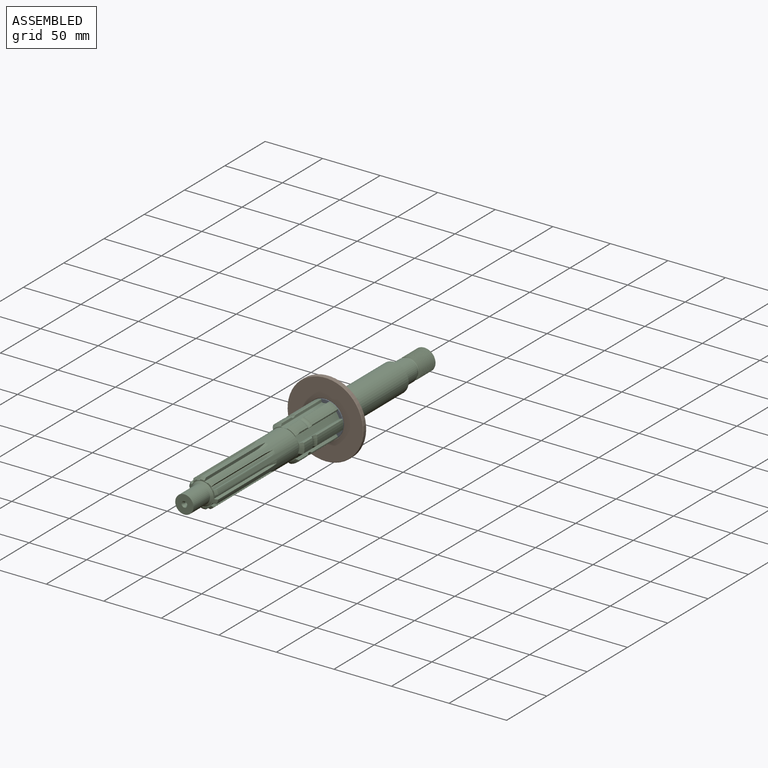
[diagram: assembled view]
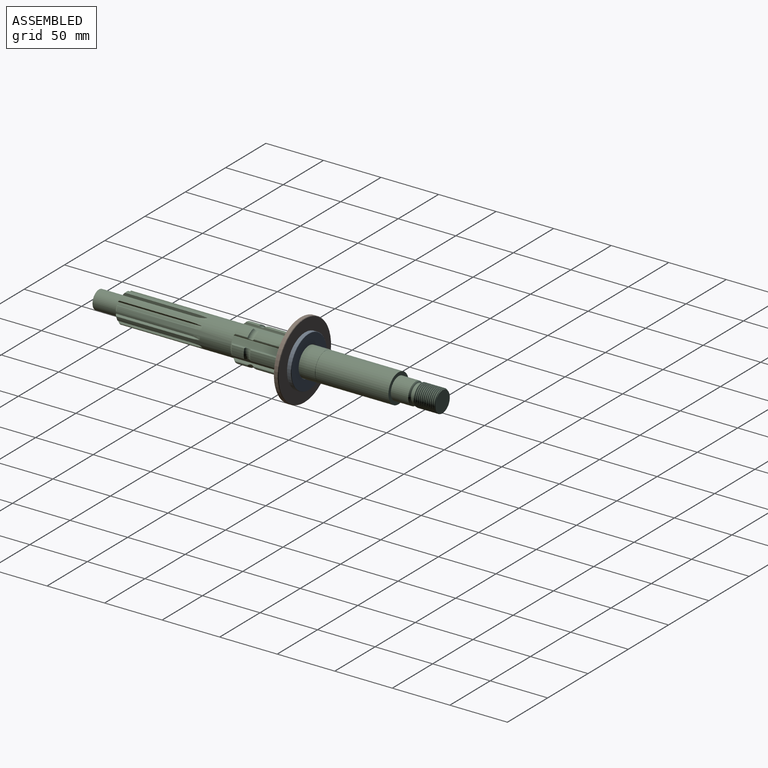
[diagram: assembled view, second angle]
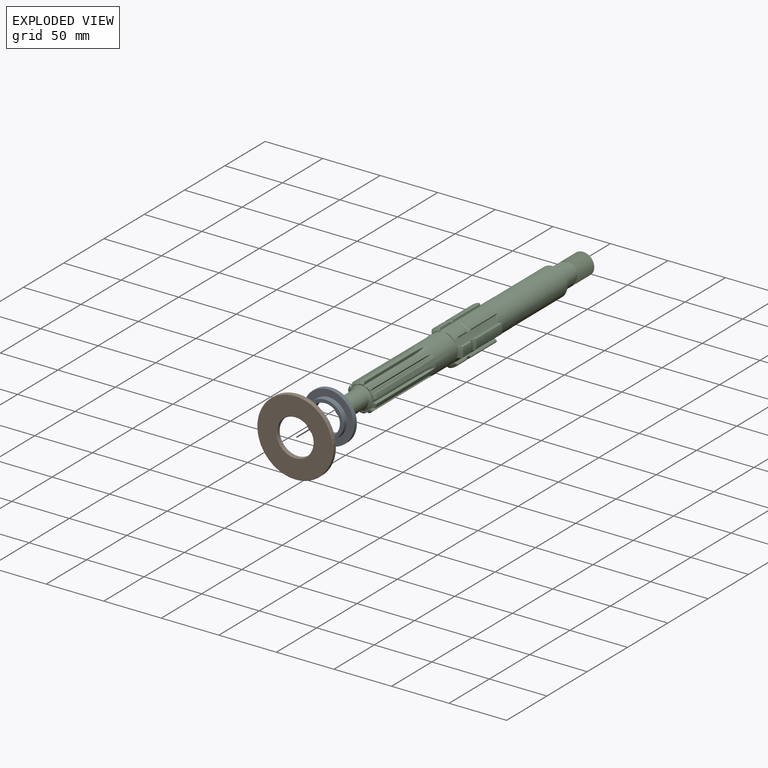
[diagram: exploded view]
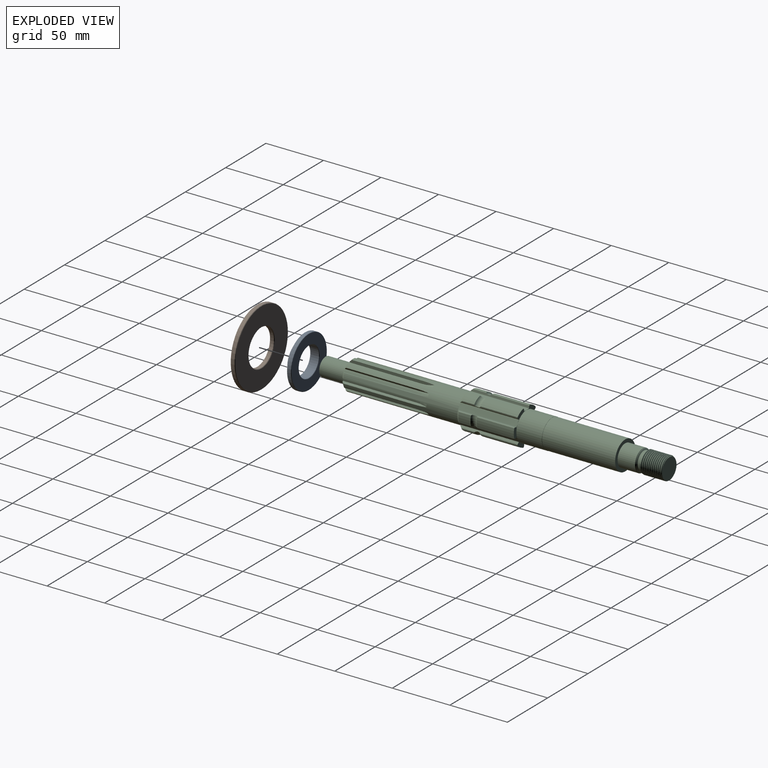
[diagram: exploded view, second angle]
ASSEMBLY  parts=3 mates=2
PART A: 12 faces, bbox 44.5x8x44.5 mm
  f0: cylinder r=22.23mm len=44.45mm, axis (0,1,0), area 452.7mm2, adj f7,f11
  f1: plane 31.24x31.24mm, normal (0,-1,0), area 239.4mm2, adj f8,f9
  f2: cylinder r=12.7mm len=25.4mm, axis (0,1,0), area 597.8mm2, adj f9,f10
  f3: plane 43.94x43.94mm, normal (0,1,0), area 989.3mm2, adj f10,f11
  f4: cylinder r=15.88mm len=31.75mm, axis (0,-1,0), area 373.2mm2, adj f6,f8
  f5: plane 43.94x43.94mm, normal (0,-1,0), area 699.3mm2, adj f6,f7
  f6: torus R=16.13mm, axis (0,-1,0), area 40mm2, adj f4,f5
  f7: cone r=21.97mm half-angle=45deg, axis (0,1,0), area 49.9mm2, adj f0,f5
  f8: cone r=15.62mm half-angle=45deg, axis (0,1,0), area 35.5mm2, adj f1,f4
  f9: cone r=12.7mm half-angle=45deg, axis (0,-1,0), area 29mm2, adj f1,f2
  f10: cone r=12.95mm half-angle=45deg, axis (0,1,0), area 29mm2, adj f2,f3
  f11: cone r=22.23mm half-angle=45deg, axis (0,-1,0), area 49.9mm2, adj f0,f3
PART B: 8 faces, bbox 66x4x66 mm
  f0: cylinder r=33mm len=66mm, axis (0,1,0), area 671.4mm2, adj f4,f6
  f1: cylinder r=15.88mm len=31.75mm, axis (0,1,0), area 323mm2, adj f5,f7
  f2: plane 65.24x65.24mm, normal (0,-1,0), area 2512.5mm2, adj f6,f7
  f3: plane 65.24x65.24mm, normal (0,1,0), area 2512.5mm2, adj f4,f5
  f4: cone r=33mm half-angle=45deg, axis (0,-1,0), area 111.1mm2, adj f0,f3
  f5: cone r=16.26mm half-angle=45deg, axis (0,1,0), area 54.4mm2, adj f1,f3
  f6: cone r=32.62mm half-angle=45deg, axis (0,1,0), area 111.1mm2, adj f0,f2
  f7: cone r=15.88mm half-angle=45deg, axis (0,-1,0), area 54.4mm2, adj f1,f2
PART C: 174 faces, bbox 38.3x299.5x37.4 mm
  f0: plane 11.25x8.99mm, normal (0,1,0), area 27.9mm2, adj f7,f36,f38,f42,f43,f142,f143,f145
  f1: plane 12.7x4.88mm, normal (0,1,0), area 27.8mm2, adj f6,f10,f13,f43,f44,f46,f47,f158
  f2: plane 11.25x8.99mm, normal (0,1,0), area 27.8mm2, adj f12,f15,f19,f47,f48,f50,f51,f158
  f3: plane 11.25x8.99mm, normal (0,1,0), area 27.8mm2, adj f18,f21,f26,f51,f52,f54,f55,f158
  f4: plane 12.7x4.88mm, normal (0,1,0), area 27.8mm2, adj f24,f27,f32,f55,f56,f58,f59,f158
  f5: cylinder r=15.88mm len=10.59mm, axis (0,-1,0), area 88.6mm2, adj f9,f14,f149,f157
  f6: cylinder r=15.88mm len=32.18mm, axis (0,-1,0), area 269.4mm2, adj f1,f10,f13,f157
  f7: plane 32.68x0.93mm, normal (1,0,-0.02), area 29.7mm2, adj f0,f36,f42,f153
  f8: plane 11.75x0.93mm, normal (1,0,-0.02), area 10.2mm2, adj f35,f42,f151,f153
  f9: plane 11.75x0.82mm, normal (0.48,0,0.88), area 10.2mm2, adj f5,f44,f149,f157
  f10: plane 32.68x0.81mm, normal (0.48,0,0.88), area 29.7mm2, adj f1,f6,f44,f157
  f11: cylinder r=15.88mm len=10.59mm, axis (0,-1,0), area 88.6mm2, adj f16,f20,f148,f156
  f12: cylinder r=15.88mm len=32.18mm, axis (0,-1,0), area 269.4mm2, adj f2,f15,f19,f156
  f13: plane 32.68x0.81mm, normal (0.48,0,-0.88), area 29.7mm2, adj f1,f6,f46,f157
  f14: plane 11.75x0.82mm, normal (0.48,0,-0.88), area 10.2mm2, adj f5,f46,f149,f157
  f15: plane 32.68x0.93mm, normal (1,0,0.02), area 29.7mm2, adj f2,f12,f48,f156
  f16: plane 11.75x0.93mm, normal (1,0,0.02), area 10.2mm2, adj f11,f48,f148,f156
  f17: cylinder r=15.88mm len=10.59mm, axis (0,-1,0), area 88.6mm2, adj f22,f25,f146,f155
  f18: cylinder r=15.88mm len=32.18mm, axis (0,-1,0), area 269.4mm2, adj f3,f21,f26,f155
  f19: plane 32.68x0.79mm, normal (-0.52,0,-0.85), area 29.7mm2, adj f2,f12,f50,f156
  f20: plane 11.75x0.8mm, normal (-0.52,0,-0.85), area 10.2mm2, adj f11,f50,f148,f156
  f21: plane 32.68x0.79mm, normal (0.52,0,-0.85), area 29.7mm2, adj f3,f18,f52,f155
  f22: plane 11.75x0.8mm, normal (0.52,0,-0.85), area 10.2mm2, adj f17,f52,f146,f155
  f23: cylinder r=15.88mm len=10.59mm, axis (0,-1,0), area 88.6mm2, adj f28,f31,f147,f154
  f24: cylinder r=15.88mm len=32.18mm, axis (0,-1,0), area 269.4mm2, adj f4,f27,f32,f154
  f25: plane 11.75x0.93mm, normal (-1,0,0.02), area 10.2mm2, adj f17,f54,f146,f155
  f26: plane 32.68x0.93mm, normal (-1,0,0.02), area 29.7mm2, adj f3,f18,f54,f155
  f27: plane 32.68x0.81mm, normal (-0.48,0,-0.88), area 29.7mm2, adj f4,f24,f56,f154
  f28: plane 11.75x0.82mm, normal (-0.48,0,-0.88), area 10.2mm2, adj f23,f56,f147,f154
  f29: cylinder r=15.88mm len=10.59mm, axis (0,-1,0), area 88.6mm2, adj f33,f39,f150,f152
  f30: cylinder r=15.88mm len=32.18mm, axis (0,-1,0), area 269.4mm2, adj f34,f40,f140,f152
  f31: plane 11.75x0.82mm, normal (-0.48,0,0.88), area 10.2mm2, adj f23,f58,f147,f154
  f32: plane 32.68x0.81mm, normal (-0.48,0,0.88), area 29.7mm2, adj f4,f24,f58,f154
  f33: plane 11.75x0.93mm, normal (-1,0,-0.02), area 10.2mm2, adj f29,f60,f150,f152
  f34: plane 32.68x0.93mm, normal (-1,0,-0.02), area 29.7mm2, adj f30,f60,f140,f152
  f35: cylinder r=15.88mm len=10.59mm, axis (0,-1,0), area 88.6mm2, adj f8,f37,f151,f153
  f36: cylinder r=15.88mm len=32.18mm, axis (0,-1,0), area 269.4mm2, adj f0,f7,f38,f153
  f37: plane 11.75x0.8mm, normal (-0.52,0,0.85), area 10.2mm2, adj f35,f143,f151,f153
  f38: plane 32.68x0.79mm, normal (-0.52,0,0.85), area 29.7mm2, adj f0,f36,f143,f153
  f39: plane 11.75x0.8mm, normal (0.52,0,0.85), area 10.2mm2, adj f29,f141,f150,f152
  f40: plane 32.68x0.79mm, normal (0.52,0,0.85), area 29.7mm2, adj f30,f140,f141,f152
  f41: plane 12.7x2.34mm, normal (0,-1,0), area 5.6mm2, adj f43,f44,f46,f47,f62,f149
  f42: plane 50.8x1.64mm, normal (0.68,0,-0.74), area 108mm2, adj f0,f7,f8,f43,f61,f151,f153
  f43: plane 50.8x4.88mm, normal (0.87,0,0.5), area 286.1mm2, adj f0,f1,f41,f42,f44,f61
  f44: plane 50.8x2.12mm, normal (-0.3,0,0.95), area 108mm2, adj f1,f9,f10,f41,f43,f149,f157
  f45: plane 11x6.67mm, normal (0,-1,0), area 5.6mm2, adj f47,f48,f50,f51,f62,f148
  f46: plane 50.8x2.12mm, normal (-0.3,0,-0.95), area 108mm2, adj f1,f13,f14,f41,f47,f149,f157
  f47: plane 50.8x4.88mm, normal (0.87,0,-0.5), area 286.1mm2, adj f1,f2,f41,f45,f46,f48
  f48: plane 50.8x1.64mm, normal (0.68,0,0.74), area 108mm2, adj f2,f15,f16,f45,f47,f148,f156
  f49: plane 11x6.67mm, normal (0,-1,0), area 5.6mm2, adj f51,f52,f54,f55,f62,f146
  f50: plane 50.8x2.17mm, normal (-0.98,0,-0.22), area 108mm2, adj f2,f19,f20,f45,f51,f148,f156
  f51: plane 50.8x5.63mm, normal (0,0,-1), area 286.1mm2, adj f2,f3,f45,f49,f50,f52
  f52: plane 50.8x2.17mm, normal (0.98,0,-0.22), area 108mm2, adj f3,f21,f22,f49,f51,f146,f155
  f53: plane 12.7x2.34mm, normal (0,-1,0), area 5.6mm2, adj f55,f56,f58,f59,f62,f147
  f54: plane 50.8x1.64mm, normal (-0.68,0,0.74), area 108mm2, adj f3,f25,f26,f49,f55,f146,f155
  f55: plane 50.8x4.88mm, normal (-0.87,0,-0.5), area 286.1mm2, adj f3,f4,f49,f53,f54,f56
  f56: plane 50.8x2.12mm, normal (0.3,0,-0.95), area 108mm2, adj f4,f27,f28,f53,f55,f147,f154
  f57: plane 11x6.67mm, normal (0,-1,0), area 5.7mm2, adj f59,f60,f62,f142,f144,f150
  f58: plane 50.8x2.12mm, normal (0.3,0,0.95), area 108mm2, adj f4,f31,f32,f53,f59,f147,f154
  f59: plane 50.8x4.88mm, normal (-0.87,0,0.5), area 286.1mm2, adj f4,f53,f57,f58,f60,f140
  f60: plane 50.8x1.64mm, normal (-0.68,0,-0.74), area 108mm2, adj f33,f34,f57,f59,f140,f150,f152
  f61: plane 11x6.67mm, normal (0,-1,0), area 5.7mm2, adj f42,f43,f62,f142,f145,f151
  f62: cylinder r=12.7mm len=99.82mm, axis (0,-1,0), area 5100.6mm2, adj f41,f45,f49,f53,f57,f61,f63,f64
  f63: cone r=12.7mm half-angle=45deg, axis (0,1,0), area 10mm2, adj f62,f75,f130,f135
  f64: cone r=12.7mm half-angle=45deg, axis (0,1,0), area 10mm2, adj f62,f75,f117,f136
  f65: cone r=12.7mm half-angle=45deg, axis (0,1,0), area 10mm2, adj f62,f75,f100,f129
  f66: cone r=12.7mm half-angle=45deg, axis (0,1,0), area 10mm2, adj f62,f75,f118,f123
  f67: cone r=12.7mm half-angle=45deg, axis (0,1,0), area 10mm2, adj f62,f75,f87,f124
  f68: cone r=12.7mm half-angle=45deg, axis (0,1,0), area 10mm2, adj f62,f75,f106,f111
  f69: cone r=12.7mm half-angle=45deg, axis (0,1,0), area 10mm2, adj f62,f75,f93,f112
  f70: cone r=12.7mm half-angle=45deg, axis (0,1,0), area 10mm2, adj f62,f75,f82,f105
  f71: cone r=12.7mm half-angle=45deg, axis (0,1,0), area 10mm2, adj f62,f75,f94,f99
  f72: cone r=12.7mm half-angle=45deg, axis (0,1,0), area 10mm2, adj f62,f75,f81,f88
  f73: cylinder r=7.94mm len=20.45mm, axis (0,-1,0), area 1019.7mm2, adj f74,f76
  f74: plane 15.88x15.88mm, normal (0,-1,0), area 178.2mm2, adj f73,f139
  f75: plane 21.84x21.65mm, normal (0,-1,0), area 61.1mm2, adj f63,f64,f65,f66,f67,f68,f69,f70
  f76: cone r=7.94mm half-angle=45deg, axis (0,1,0), area 139.4mm2, adj f73,f75
  f77: torus R=35.61mm, axis (-0.59,0,0.81), area 28mm2, adj f62,f78,f79,f80
  f78: cone r=23.07mm half-angle=72deg, axis (-0.59,0,0.81), area 17.9mm2, adj f62,f77,f81
  f79: cone r=25.4mm half-angle=72deg, axis (0.59,0,-0.81), area 17.9mm2, adj f62,f77,f82
  f80: cylinder r=10.29mm len=63.5mm, axis (0,-1,0), area 158.9mm2, adj f75,f77,f81,f82
  f81: plane 63.52x2.35mm, normal (-0.31,0,0.95), area 153.9mm2, adj f62,f72,f75,f78,f80
  f82: plane 63.52x2mm, normal (0.81,0,-0.59), area 153.9mm2, adj f62,f70,f75,f79,f80
  f83: torus R=35.61mm, axis (0,0,1), area 28mm2, adj f62,f84,f85,f86
  f84: cone r=23.07mm half-angle=72deg, axis (0,0,1), area 17.9mm2, adj f62,f83,f87
  f85: cone r=25.4mm half-angle=72deg, axis (0,0,-1), area 17.9mm2, adj f62,f83,f88
  f86: cylinder r=10.29mm len=63.5mm, axis (0,-1,0), area 158.9mm2, adj f75,f83,f87,f88
  f87: plane 63.52x2.35mm, normal (0.31,0,0.95), area 153.9mm2, adj f62,f67,f75,f84,f86
  f88: plane 63.52x2.35mm, normal (0.31,0,-0.95), area 153.9mm2, adj f62,f72,f75,f85,f86
  f89: torus R=35.61mm, axis (-0.59,0,-0.81), area 28mm2, adj f62,f90,f91,f92
  f90: cone r=23.07mm half-angle=72deg, axis (-0.59,0,-0.81), area 17.9mm2, adj f62,f89,f93
  f91: cone r=25.4mm half-angle=72deg, axis (0.59,0,0.81), area 17.9mm2, adj f62,f89,f94
  f92: cylinder r=10.29mm len=63.5mm, axis (0,-1,0), area 158.9mm2, adj f75,f89,f93,f94
  f93: plane 63.52x2mm, normal (-0.81,0,-0.59), area 153.9mm2, adj f62,f69,f75,f90,f92
  f94: plane 63.52x2.35mm, normal (0.31,0,0.95), area 153.9mm2, adj f62,f71,f75,f91,f92
  f95: torus R=35.61mm, axis (0,0,-1), area 28mm2, adj f62,f96,f97,f98
  f96: cone r=23.07mm half-angle=72deg, axis (0,0,-1), area 17.9mm2, adj f62,f95,f99
  f97: cone r=25.4mm half-angle=72deg, axis (0,0,1), area 17.9mm2, adj f62,f95,f100
  f98: cylinder r=10.29mm len=63.5mm, axis (0,-1,0), area 158.9mm2, adj f75,f95,f99,f100
  f99: plane 63.52x2.35mm, normal (-0.31,0,-0.95), area 153.9mm2, adj f62,f71,f75,f96,f98
  f100: plane 63.52x2.35mm, normal (-0.31,0,0.95), area 153.9mm2, adj f62,f65,f75,f97,f98
  f101: torus R=35.61mm, axis (-0.95,0,0.31), area 28mm2, adj f62,f102,f103,f104
  f102: cone r=23.07mm half-angle=72deg, axis (-0.95,0,0.31), area 17.9mm2, adj f62,f101,f105
  f103: cone r=25.4mm half-angle=72deg, axis (0.95,0,-0.31), area 17.9mm2, adj f62,f101,f106
  f104: cylinder r=10.29mm len=63.5mm, axis (0,-1,0), area 158.9mm2, adj f75,f101,f105,f106
  f105: plane 63.52x2mm, normal (-0.81,0,0.59), area 153.9mm2, adj f62,f70,f75,f102,f104
  f106: plane 63.52x2.47mm, normal (1,0,0), area 153.9mm2, adj f62,f68,f75,f103,f104
  f107: torus R=35.61mm, axis (-0.95,0,-0.31), area 28mm2, adj f62,f108,f109,f110
  f108: cone r=23.07mm half-angle=72deg, axis (-0.95,0,-0.31), area 17.9mm2, adj f62,f107,f111
  f109: cone r=25.4mm half-angle=72deg, axis (0.95,0,0.31), area 17.9mm2, adj f62,f107,f112
  f110: cylinder r=10.29mm len=63.5mm, axis (0,-1,0), area 158.9mm2, adj f75,f107,f111,f112
  f111: plane 63.52x2.47mm, normal (-1,0,0), area 153.9mm2, adj f62,f68,f75,f108,f110
  f112: plane 63.52x2mm, normal (0.81,0,0.59), area 153.9mm2, adj f62,f69,f75,f109,f110
  f113: torus R=35.61mm, axis (0.95,0,0.31), area 28mm2, adj f62,f114,f115,f116
  f114: cone r=23.07mm half-angle=72deg, axis (0.95,0,0.31), area 17.9mm2, adj f62,f113,f117
  f115: cone r=25.4mm half-angle=72deg, axis (-0.95,0,-0.31), area 17.9mm2, adj f62,f113,f118
  f116: cylinder r=10.29mm len=63.5mm, axis (0,-1,0), area 158.9mm2, adj f75,f113,f117,f118
  f117: plane 63.52x2.47mm, normal (1,0,0), area 153.9mm2, adj f62,f64,f75,f114,f116
  f118: plane 63.52x2mm, normal (-0.81,0,-0.59), area 153.9mm2, adj f62,f66,f75,f115,f116
  f119: torus R=35.61mm, axis (0.59,0,0.81), area 28mm2, adj f62,f120,f121,f122
  f120: cone r=23.07mm half-angle=72deg, axis (0.59,0,0.81), area 17.9mm2, adj f62,f119,f123
  f121: cone r=25.4mm half-angle=72deg, axis (-0.59,0,-0.81), area 17.9mm2, adj f62,f119,f124
  f122: cylinder r=10.29mm len=63.5mm, axis (0,-1,0), area 158.9mm2, adj f75,f119,f123,f124
  f123: plane 63.52x2mm, normal (0.81,0,0.59), area 153.9mm2, adj f62,f66,f75,f120,f122
  f124: plane 63.52x2.35mm, normal (-0.31,0,-0.95), area 153.9mm2, adj f62,f67,f75,f121,f122
  f125: torus R=35.61mm, axis (0.59,0,-0.81), area 28mm2, adj f62,f126,f127,f128
  f126: cone r=23.07mm half-angle=72deg, axis (0.59,0,-0.81), area 17.9mm2, adj f62,f125,f129
  f127: cone r=25.4mm half-angle=72deg, axis (-0.59,0,0.81), area 17.9mm2, adj f62,f125,f130
  f128: cylinder r=10.29mm len=63.5mm, axis (0,-1,0), area 158.9mm2, adj f75,f125,f129,f130
  f129: plane 63.52x2.35mm, normal (0.31,0,-0.95), area 153.9mm2, adj f62,f65,f75,f126,f128
  f130: plane 63.52x2mm, normal (-0.81,0,0.59), area 153.9mm2, adj f62,f63,f75,f127,f128
  f131: torus R=35.61mm, axis (0.95,0,-0.31), area 28mm2, adj f62,f132,f133,f134
  f132: cone r=23.07mm half-angle=72deg, axis (0.95,0,-0.31), area 17.9mm2, adj f62,f131,f135
  f133: cone r=25.4mm half-angle=72deg, axis (-0.95,0,0.31), area 17.9mm2, adj f62,f131,f136
  f134: cylinder r=10.29mm len=63.5mm, axis (0,-1,0), area 158.9mm2, adj f75,f131,f135,f136
  f135: plane 63.52x2mm, normal (0.81,0,-0.59), area 153.9mm2, adj f62,f63,f75,f132,f134
  f136: plane 63.52x2.47mm, normal (-1,0,0), area 153.9mm2, adj f62,f64,f75,f133,f134
  f137: cone r=0mm half-angle=59deg, axis (0,-1,0), area 9.2mm2, adj f138
  f138: cylinder r=1.59mm len=3.18mm, axis (0,-1,0), area 31.7mm2, adj f137,f139
  f139: cone r=1.59mm half-angle=30deg, axis (0,-1,0), area 23.6mm2, adj f74,f138
  f140: plane 11.25x8.99mm, normal (0,1,0), area 27.9mm2, adj f30,f34,f40,f59,f60,f141,f142,f144
  f141: plane 50.72x1.77mm, normal (0.98,0,0.22), area 87.3mm2, adj f39,f40,f140,f144,f150,f152
  f142: plane 50.8x4.82mm, normal (0,0,1), area 244.6mm2, adj f0,f57,f61,f140,f144,f145
  f143: plane 50.72x1.77mm, normal (-0.98,0,0.22), area 87.3mm2, adj f0,f37,f38,f145,f151,f153
  f144: cylinder r=0.51mm len=50.8mm, axis (0,1,0), area 34.9mm2, adj f57,f140,f141,f142,f150
  f145: cylinder r=0.51mm len=50.8mm, axis (0,1,0), area 34.9mm2, adj f0,f61,f142,f143,f151
  f146: cone r=15.88mm half-angle=45deg, axis (0,1,0), area 31.4mm2, adj f17,f22,f25,f49,f52,f54
  f147: cone r=15.88mm half-angle=45deg, axis (0,1,0), area 31.4mm2, adj f23,f28,f31,f53,f56,f58
  f148: cone r=15.88mm half-angle=45deg, axis (0,1,0), area 31.4mm2, adj f11,f16,f20,f45,f48,f50
  f149: cone r=15.88mm half-angle=45deg, axis (0,1,0), area 31.4mm2, adj f5,f9,f14,f41,f44,f46
  f150: cone r=15.88mm half-angle=45deg, axis (0,1,0), area 31.4mm2, adj f29,f33,f39,f57,f60,f141,f144
  f151: cone r=15.88mm half-angle=45deg, axis (0,1,0), area 31.4mm2, adj f8,f35,f37,f42,f61,f143,f145
  f152: torus R=17.46mm, axis (0,-1,0), area 59.2mm2, adj f29,f30,f33,f34,f39,f40,f60,f141
  f153: torus R=17.46mm, axis (0,-1,0), area 59.2mm2, adj f7,f8,f35,f36,f37,f38,f42,f143
  f154: torus R=17.46mm, axis (0,-1,0), area 59.2mm2, adj f23,f24,f27,f28,f31,f32,f56,f58
  f155: torus R=17.46mm, axis (0,-1,0), area 59.2mm2, adj f17,f18,f21,f22,f25,f26,f52,f54
  f156: torus R=17.46mm, axis (0,-1,0), area 59.2mm2, adj f11,f12,f15,f16,f19,f20,f48,f50
  f157: torus R=17.46mm, axis (0,-1,0), area 59.2mm2, adj f5,f6,f9,f10,f13,f14,f44,f46
  f158: cylinder r=12.7mm len=25.4mm, axis (0,-1,0), area 1765.4mm2, adj f0,f1,f2,f3,f4,f140,f173
  f159: plane 25.2x25.2mm, normal (0,1,0), area 2mm2, adj f160,f173
  f160: cylinder r=12.57mm len=63.5mm, axis (0,-1,0), area 5016.4mm2, adj f159,f161
  f161: plane 25.15x25.15mm, normal (0,1,0), area 211.6mm2, adj f160,f162
  f162: cylinder r=9.53mm len=19.05mm, axis (0,-1,0), area 902.6mm2, adj f161,f172
  f163: cylinder r=7.94mm len=15.88mm, axis (0,-1,0), area 79.2mm2, adj f170,f171
  f164: cylinder r=9.53mm len=19.05mm, axis (0,-1,0), area 222.2mm2, adj f165,f166,f168,f169
  f165: plane 18.58x18.51mm, normal (0,1,0), area 256.4mm2, adj f164,f167,f168,f169
  f166: plane 18.46x17.42mm, normal (0,-1,0), area 18.7mm2, adj f164,f168,f169,f171
  f167: bspline ~20.51x20.01mm, area 288.4mm2, adj f165,f168,f169,f171
  f168: bspline ~22x20.34mm, area 680.3mm2, adj f164,f165,f166,f167,f171
  f169: bspline ~22x20.08mm, area 633.8mm2, adj f164,f165,f166,f167,f171
  f170: torus R=8.73mm, axis (0,1,0), area 64.4mm2, adj f163,f172
  f171: torus R=8.73mm, axis (0,1,0), area 62.7mm2, adj f163,f166,f167,f168,f169
  f172: cone r=8.73mm half-angle=45deg, axis (0,-1,0), area 64.4mm2, adj f162,f170
  f173: cone r=12.6mm half-angle=45deg, axis (0,-1,0), area 11.4mm2, adj f158,f159
PLACE A t=(0,182.63,0)mm
PLACE B t=(0,182.63,0)mm
PLACE C at identity
MATE fastened A.f2 <-> C.f62  axis (0,-1,0) through (0,174.63,0)mm
MATE revolute B.f1 <-> A.f0  axis (0,1,0) through (0,178.88,0)mm
